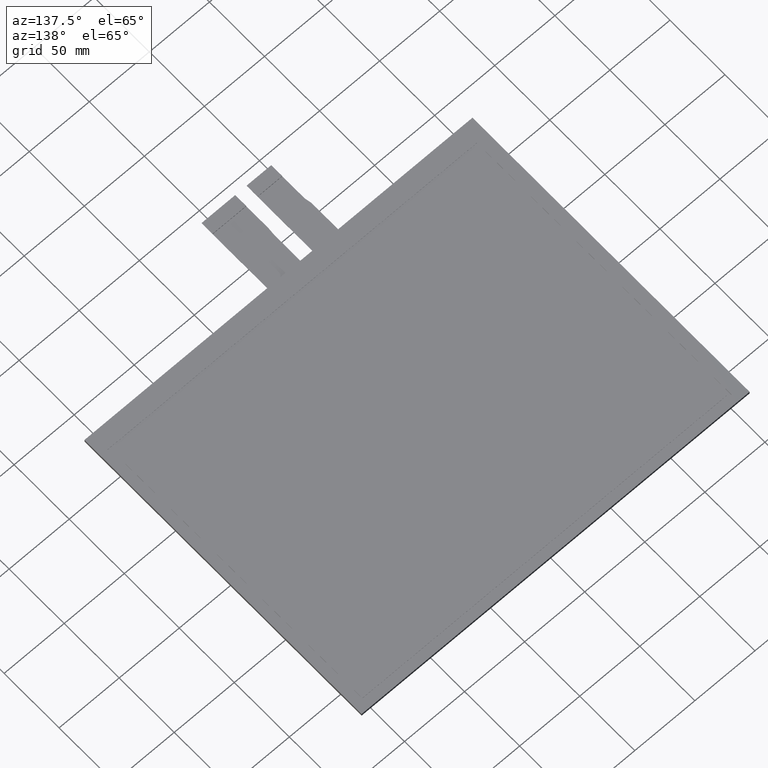
[diagram: clean part render]
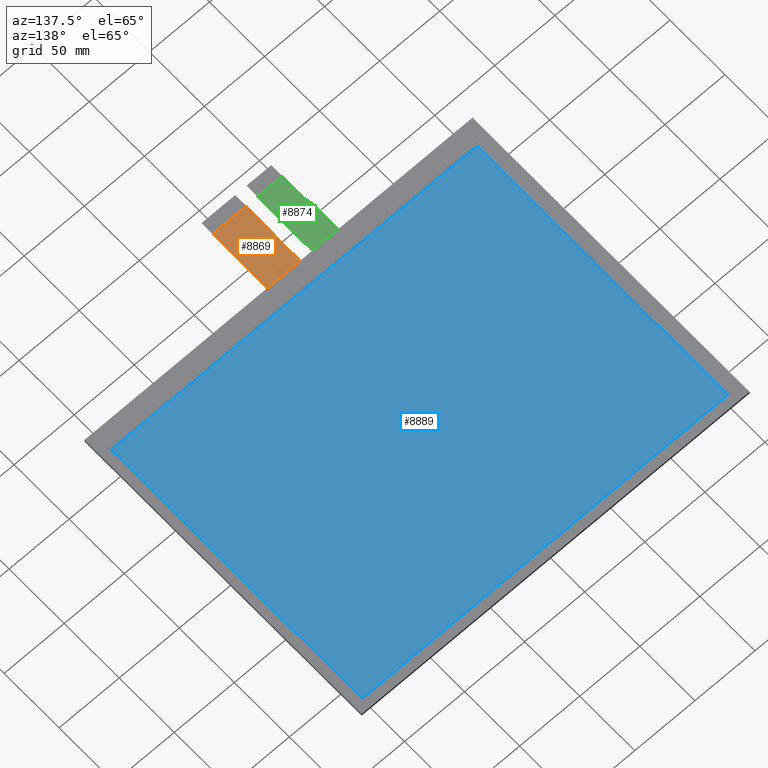
[diagram: same view with three faces highlighted in distinct colors, each labeled with its STEP entity id]
A machine part, auxiliary view with three faces highlighted in distinct colors.
Their STEP definitions:

[orange] entity #8869 — the highlighted planar face has unit normal (0, 0, 1).
#531=PLANE('',#9319);
#953=FACE_OUTER_BOUND('',#1375,.T.);
#1375=EDGE_LOOP('',(#8351,#8352,#8353,#8354,#8355,#8356));
#1803=LINE('',#12268,#3043);
#2583=LINE('',#13828,#3823);
#2586=LINE('',#13833,#3826);
#2590=LINE('',#13843,#3830);
#2594=LINE('',#13850,#3834);
#2596=LINE('',#13853,#3836);
#3043=VECTOR('',#9779,10.);
#3823=VECTOR('',#11331,10.);
#3826=VECTOR('',#11336,10.);
#3830=VECTOR('',#11346,10.);
#3834=VECTOR('',#11352,10.);
#3836=VECTOR('',#11356,10.);
#4292=VERTEX_POINT('',#12265);
#4293=VERTEX_POINT('',#12267);
#4686=VERTEX_POINT('',#13825);
#4687=VERTEX_POINT('',#13827);
#4690=VERTEX_POINT('',#13841);
#4691=VERTEX_POINT('',#13842);
#5131=EDGE_CURVE('',#4293,#4292,#1803,.T.);
#5911=EDGE_CURVE('',#4687,#4686,#2583,.T.);
#5914=EDGE_CURVE('',#4686,#4293,#2586,.T.);
#5918=EDGE_CURVE('',#4690,#4691,#2590,.T.);
#5922=EDGE_CURVE('',#4691,#4687,#2594,.T.);
#5924=EDGE_CURVE('',#4690,#4292,#2596,.T.);
#8351=ORIENTED_EDGE('',*,*,#5914,.T.);
#8352=ORIENTED_EDGE('',*,*,#5131,.T.);
#8353=ORIENTED_EDGE('',*,*,#5924,.F.);
#8354=ORIENTED_EDGE('',*,*,#5918,.T.);
#8355=ORIENTED_EDGE('',*,*,#5922,.T.);
#8356=ORIENTED_EDGE('',*,*,#5911,.T.);
#8869=ADVANCED_FACE('',(#953),#531,.T.);
#9319=AXIS2_PLACEMENT_3D('',#13852,#11354,#11355);
#9779=DIRECTION('',(2.07241631263363E-15,1.,0.));
#11331=DIRECTION('',(5.8819762894048E-16,-1.,0.));
#11336=DIRECTION('',(1.,0.,0.));
#11346=DIRECTION('',(1.8503717077086E-16,-1.,0.));
#11352=DIRECTION('',(-0.0858883421530374,-0.996304768974937,0.));
#11354=DIRECTION('center_axis',(0.,0.,1.));
#11355=DIRECTION('ref_axis',(1.,0.,0.));
#11356=DIRECTION('',(1.,1.10025199095711E-16,0.));
#12265=CARTESIAN_POINT('',(7.25000000000011,-130.05,-1.1));
#12267=CARTESIAN_POINT('',(7.24999999999998,-180.05,-1.1));
#12268=CARTESIAN_POINT('',(7.24999999999998,-190.05,-1.1));
#13825=CARTESIAN_POINT('',(-20.75,-180.05,-1.1));
#13827=CARTESIAN_POINT('',(-20.75,-159.85,-1.1));
#13828=CARTESIAN_POINT('',(-20.75,-159.85,-1.1));
#13833=CARTESIAN_POINT('',(0.250000000000007,-180.05,-1.1));
#13841=CARTESIAN_POINT('',(-20.2499999999999,-130.05,-1.1));
#13842=CARTESIAN_POINT('',(-20.2499999999999,-154.05,-1.1));
#13843=CARTESIAN_POINT('',(-20.2499999999999,-130.05,-1.1));
#13850=CARTESIAN_POINT('',(-20.2499999999999,-154.05,-1.1));
#13852=CARTESIAN_POINT('Origin',(-6.74999999999996,-160.05,-1.1));
#13853=CARTESIAN_POINT('',(76.475,-130.05,-1.1));

[blue] entity #8889 — the highlighted planar face has unit normal (0, 0, 1).
#551=PLANE('',#9339);
#973=FACE_OUTER_BOUND('',#1399,.T.);
#1399=EDGE_LOOP('',(#8457,#8458,#8459,#8460));
#2605=LINE('',#13873,#3845);
#2609=LINE('',#13881,#3849);
#2612=LINE('',#13887,#3852);
#2615=LINE('',#13892,#3855);
#3845=VECTOR('',#11377,10.);
#3849=VECTOR('',#11383,10.);
#3852=VECTOR('',#11388,10.);
#3855=VECTOR('',#11393,10.);
#4697=VERTEX_POINT('',#13871);
#4698=VERTEX_POINT('',#13872);
#4701=VERTEX_POINT('',#13880);
#4703=VERTEX_POINT('',#13886);
#5933=EDGE_CURVE('',#4697,#4698,#2605,.T.);
#5937=EDGE_CURVE('',#4701,#4697,#2609,.T.);
#5940=EDGE_CURVE('',#4703,#4701,#2612,.T.);
#5943=EDGE_CURVE('',#4698,#4703,#2615,.T.);
#8457=ORIENTED_EDGE('',*,*,#5933,.T.);
#8458=ORIENTED_EDGE('',*,*,#5943,.T.);
#8459=ORIENTED_EDGE('',*,*,#5940,.T.);
#8460=ORIENTED_EDGE('',*,*,#5937,.T.);
#8889=ADVANCED_FACE('',(#973),#551,.T.);
#9339=AXIS2_PLACEMENT_3D('',#13944,#11439,#11440);
#11377=DIRECTION('',(1.,0.,0.));
#11383=DIRECTION('',(0.,-1.,0.));
#11388=DIRECTION('',(-1.,0.,0.));
#11393=DIRECTION('',(0.,1.,0.));
#11439=DIRECTION('center_axis',(0.,0.,1.));
#11440=DIRECTION('ref_axis',(1.,0.,0.));
#13871=CARTESIAN_POINT('',(-152.1,-114.05,0.));
#13872=CARTESIAN_POINT('',(152.1,-114.05,0.));
#13873=CARTESIAN_POINT('',(-76.925,-114.05,0.));
#13880=CARTESIAN_POINT('',(-152.1,114.05,0.));
#13881=CARTESIAN_POINT('',(-152.1,54.925,0.));
#13886=CARTESIAN_POINT('',(152.1,114.05,0.));
#13887=CARTESIAN_POINT('',(75.175,114.05,0.));
#13892=CARTESIAN_POINT('',(152.1,-59.125,0.));
#13944=CARTESIAN_POINT('Origin',(-1.75000000000004,-4.2,0.));

[green] entity #8874 — the highlighted planar face has unit normal (0, 0, 1).
#536=PLANE('',#9324);
#958=FACE_OUTER_BOUND('',#1380,.T.);
#1380=EDGE_LOOP('',(#8379,#8380,#8381,#8382,#8383,#8384));
#2577=LINE('',#13816,#3817);
#2588=LINE('',#13838,#3828);
#2598=LINE('',#13859,#3838);
#2601=LINE('',#13863,#3841);
#2603=LINE('',#13867,#3843);
#2604=LINE('',#13869,#3844);
#3817=VECTOR('',#11321,10.);
#3828=VECTOR('',#11342,10.);
#3838=VECTOR('',#11362,10.);
#3841=VECTOR('',#11367,10.);
#3843=VECTOR('',#11371,10.);
#3844=VECTOR('',#11374,10.);
#4682=VERTEX_POINT('',#13813);
#4683=VERTEX_POINT('',#13815);
#4689=VERTEX_POINT('',#13837);
#4694=VERTEX_POINT('',#13857);
#4695=VERTEX_POINT('',#13858);
#4696=VERTEX_POINT('',#13865);
#5905=EDGE_CURVE('',#4683,#4682,#2577,.T.);
#5916=EDGE_CURVE('',#4682,#4689,#2588,.T.);
#5926=EDGE_CURVE('',#4694,#4695,#2598,.T.);
#5929=EDGE_CURVE('',#4695,#4683,#2601,.T.);
#5931=EDGE_CURVE('',#4689,#4696,#2603,.T.);
#5932=EDGE_CURVE('',#4694,#4696,#2604,.T.);
#8379=ORIENTED_EDGE('',*,*,#5916,.T.);
#8380=ORIENTED_EDGE('',*,*,#5931,.T.);
#8381=ORIENTED_EDGE('',*,*,#5932,.F.);
#8382=ORIENTED_EDGE('',*,*,#5926,.T.);
#8383=ORIENTED_EDGE('',*,*,#5929,.T.);
#8384=ORIENTED_EDGE('',*,*,#5905,.T.);
#8874=ADVANCED_FACE('',(#958),#536,.T.);
#9324=AXIS2_PLACEMENT_3D('',#13868,#11372,#11373);
#11321=DIRECTION('',(0.,-1.,0.));
#11342=DIRECTION('',(1.,-1.73303106282951E-15,0.));
#11362=DIRECTION('',(0.,-1.,0.));
#11367=DIRECTION('',(0.190808995376546,-0.981627183447664,0.));
#11371=DIRECTION('',(-5.18104078158406E-16,1.,0.));
#11372=DIRECTION('center_axis',(0.,0.,1.));
#11373=DIRECTION('ref_axis',(1.,0.,0.));
#11374=DIRECTION('',(1.,1.10025199095711E-16,0.));
#13813=CARTESIAN_POINT('',(-50.75,-180.05,-1.1));
#13815=CARTESIAN_POINT('',(-50.75,-159.78,-1.1));
#13816=CARTESIAN_POINT('',(-50.75,-159.78,-1.1));
#13837=CARTESIAN_POINT('',(-30.25,-180.05,-1.1));
#13838=CARTESIAN_POINT('',(-35.625,-180.05,-1.1));
#13857=CARTESIAN_POINT('',(-51.75,-130.05,-1.1));
#13858=CARTESIAN_POINT('',(-51.75,-154.63544598403,-1.1));
#13859=CARTESIAN_POINT('',(-51.75,-130.05,-1.1));
#13863=CARTESIAN_POINT('',(-51.75,-154.63544598403,-1.1));
#13865=CARTESIAN_POINT('',(-30.25,-130.05,-1.1));
#13867=CARTESIAN_POINT('',(-30.25,-190.05,-1.1));
#13868=CARTESIAN_POINT('Origin',(-41.,-160.05,-1.1));
#13869=CARTESIAN_POINT('',(59.35,-130.05,-1.1));